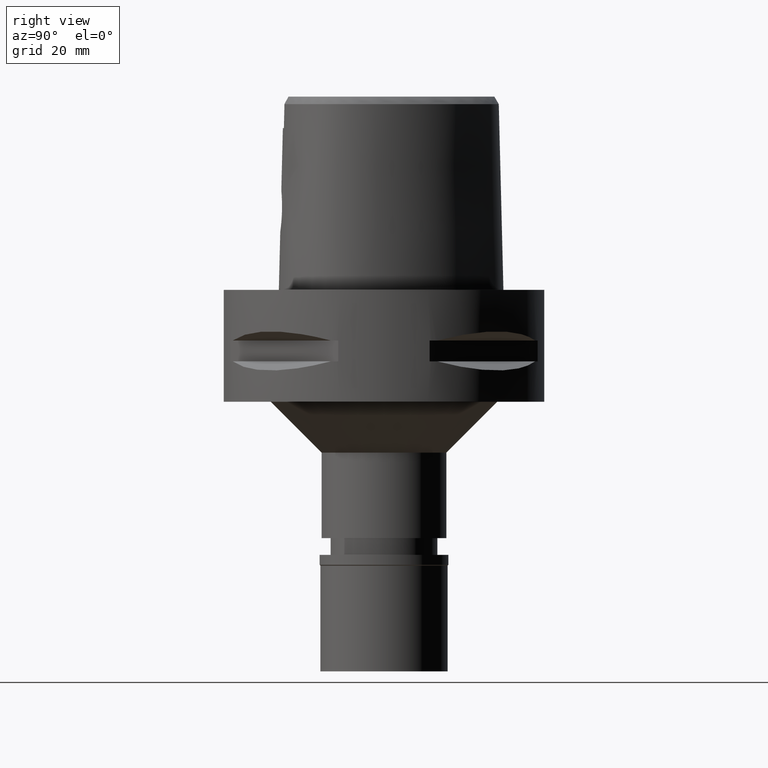
[diagram: clean part render]
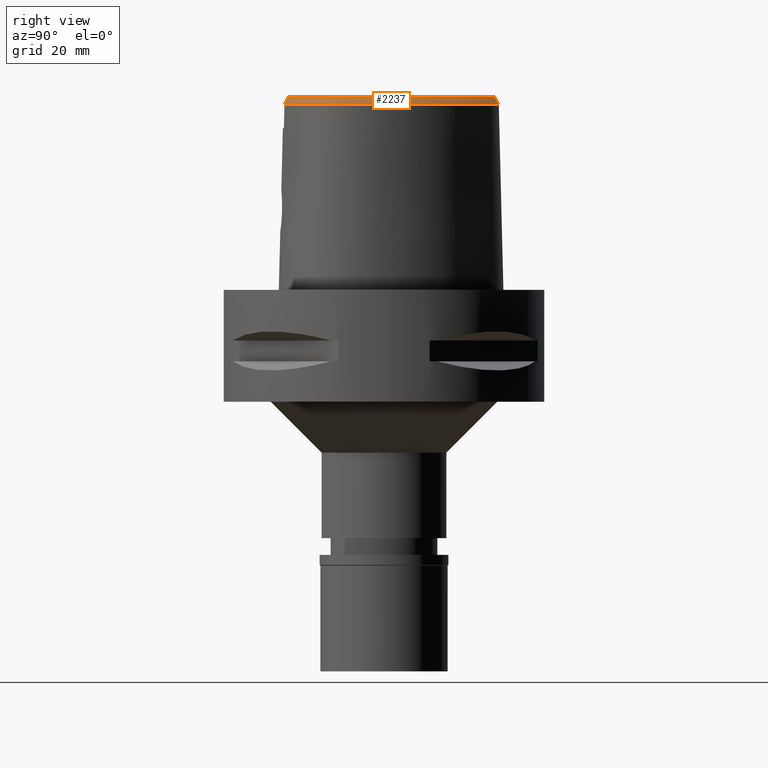
[diagram: same view with one face highlighted and labeled with its STEP entity id]
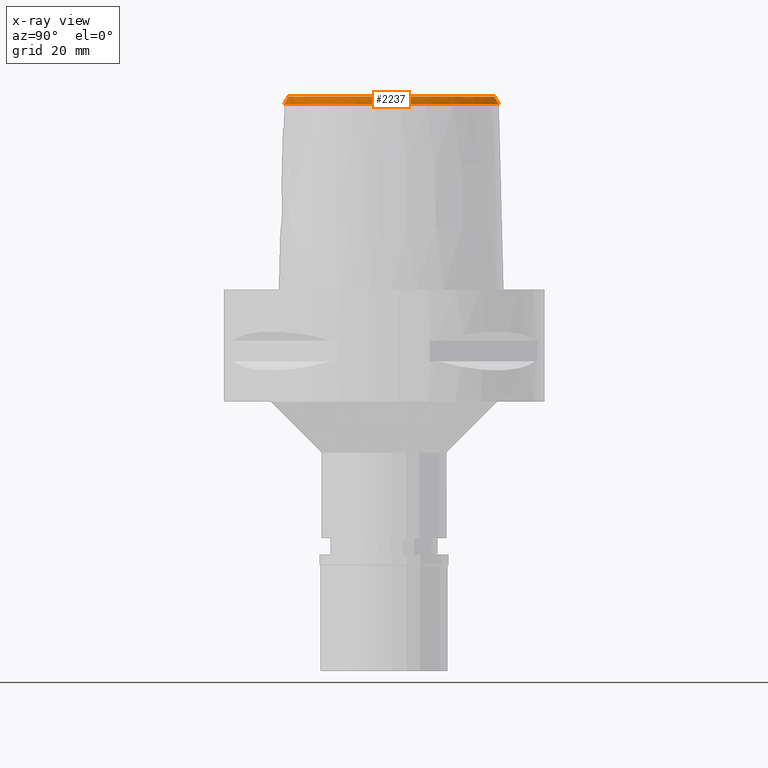
[diagram: x-ray of the same camera — body ghosted, the highlighted face saturated]
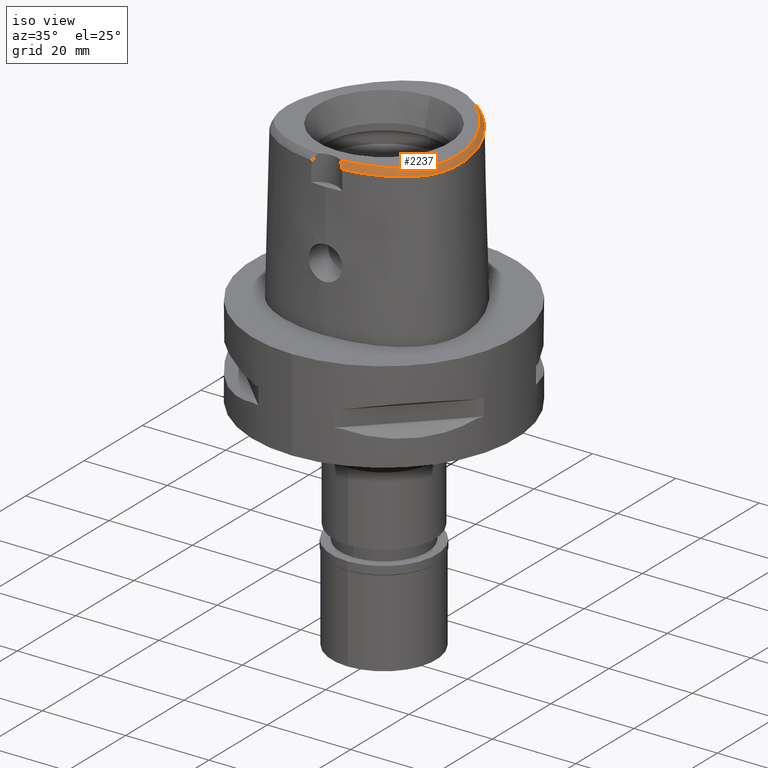
[diagram: same view with one face highlighted and labeled with its STEP entity id]
A machine part, right view. The second image highlights one B-rep face of the part: STEP entity #2237.
The next image is the same camera in x-ray: the body ghosted, the highlighted face saturated — about 0% of this face is hidden behind the body in this view.
A second angle (iso view) of the same face is appended — the face is thin or edge-on in the first view.
In plain terms, the highlighted face is a freeform B-spline surface patch.
Its self-contained STEP definition (entity closure, byte-faithful):
#1 = CARTESIAN_POINT ( 'NONE',  ( 19.85893420387000319, 0.2093043518200999875, 38.14233768172000083 ) ) ;
#16 = ORIENTED_EDGE ( 'NONE', *, *, #4386, .F. ) ;
#26 = CARTESIAN_POINT ( 'NONE',  ( 20.27923816685697744, -6.179850483268552352, 38.00000000000189715 ) ) ;
#27 = CARTESIAN_POINT ( 'NONE',  ( 7.609322350936000845, 19.02384074973999972, 38.14233798389000185 ) ) ;
#32 = CARTESIAN_POINT ( 'NONE',  ( 10.26521421730999961, -17.49286729517999817, 37.55472042238999819 ) ) ;
#34 = CARTESIAN_POINT ( 'NONE',  ( 20.09619608768439392, -10.23243839429969526, 36.52186680739944080 ) ) ;
#44 = CARTESIAN_POINT ( 'NONE',  ( -3.470663397165000433E-11, 21.68728795390000030, 38.00000000000000000 ) ) ;
#45 = CARTESIAN_POINT ( 'NONE',  ( 0.6897275444892000396, 22.28414658196000175, 36.96710129940999678 ) ) ;
#50 = CARTESIAN_POINT ( 'NONE',  ( 14.71624351938999808, -16.16025497477999906, 36.37948367857999443 ) ) ;
#52 = CARTESIAN_POINT ( 'NONE',  ( -1.460227875973999874E-11, 22.56201468012000078, 36.52186680743999858 ) ) ;
#71 = CARTESIAN_POINT ( 'NONE',  ( 0.6513209347955726258, 21.67370899611861290, 38.00000000000110134 ) ) ;
#77 = CARTESIAN_POINT ( 'NONE',  ( 16.30714729653000106, -13.69910498926999942, 38.14233800427000176 ) ) ;
#101 = CARTESIAN_POINT ( 'NONE',  ( 5.309429619471999651, 21.09205466863000211, 36.96710176742999465 ) ) ;
#105 = CARTESIAN_POINT ( 'NONE',  ( 16.87922389032000225, -13.16391012829000040, 38.14233799533000280 ) ) ;
#109 = CARTESIAN_POINT ( 'NONE',  ( 3.637738219117000238, -19.56971420299000286, 36.52185956443999970 ) ) ;
#121 = CARTESIAN_POINT ( 'NONE',  ( -0.3946767004537000134, 21.59752894422999958, 38.14233798843000045 ) ) ;
#126 = CARTESIAN_POINT ( 'NONE',  ( 11.68862078011000172, -17.69288312504999894, 36.37948292475000045 ) ) ;
#129 = CARTESIAN_POINT ( 'NONE',  ( 4.467522181837084716, -19.48130276147729845, 36.52186680739944080 ) ) ;
#149 = CARTESIAN_POINT ( 'NONE',  ( 18.39148012605999938, -12.51503884851999970, 36.96710183719999776 ) ) ;
#163 = B_SPLINE_CURVE_WITH_KNOTS ( 'NONE', 3,
 ( #52, #3427, #1163, #4579, #1190, #3373, #4170, #2299, #3773, #1579, #815, #1978, #3790, #34, #3842, #1949, #420, #3456, #1921, #499, #442, #129, #109 ),
 .UNSPECIFIED., .F., .F.,
 ( 4, 1, 1, 1, 1, 1, 1, 1, 1, 1, 1, 1, 1, 1, 1, 1, 1, 1, 1, 1, 4 ),
 ( 0.0000000000000000000, 0.04382683003322416365, 0.08765366006602745563, 0.1314804900989360870, 0.1753073201318447183, 0.2629609801974513994, 0.3506146402631634684, 0.4382683003288753709, 0.5259219603945873844, 0.5697487904274959325, 0.6135756204601940933, 0.6574024504931027524, 0.6793158655095044018, 0.7012292805260113004, 0.7231426955424129499, 0.7450561105588145994, 0.7888829405916181203, 0.8327097706245266684, 0.8765366006573300783, 0.9641902607230630196, 1.000000000000000000 ),
 .UNSPECIFIED. ) ;
#174 = CARTESIAN_POINT ( 'NONE',  ( 20.57911425145999829, -7.951797171111999241, 36.96710137088000181 ) ) ;
#185 = CARTESIAN_POINT ( 'NONE',  ( 2.845098933833787758, -18.76733062686184894, 37.99999999999629097 ) ) ;
#189 = CARTESIAN_POINT ( 'NONE',  ( 17.39024792750000259, -12.62536624366999938, 38.14233798245000173 ) ) ;
#213 = CARTESIAN_POINT ( 'NONE',  ( 19.20032186290999832, -11.35072579786000091, 36.96710157924000839 ) ) ;
#241 = CARTESIAN_POINT ( 'NONE',  ( 18.24961985892999650, -11.53786583397000065, 38.14233801289999803 ) ) ;
#264 = CARTESIAN_POINT ( 'NONE',  ( 15.17644057704999838, 11.21098579469999912, 38.14233790013999936 ) ) ;
#289 = CARTESIAN_POINT ( 'NONE',  ( 17.42492481456999798, 8.807603344372999743, 36.96710169664000745 ) ) ;
#312 = CARTESIAN_POINT ( 'NONE',  ( 17.73152053319000032, 8.971956420100999807, 36.37948356802999683 ) ) ;
#337 = CARTESIAN_POINT ( 'NONE',  ( 17.84169282468999995, 7.213307639382999348, 37.55472000113000064 ) ) ;
#360 = CARTESIAN_POINT ( 'NONE',  ( 16.09765529146748619, 9.909410920133280953, 37.99999999999220535 ) ) ;
#361 = CARTESIAN_POINT ( 'NONE',  ( 13.15597347491000058, 15.53115219750999998, 36.37948405084999592 ) ) ;
#385 = CARTESIAN_POINT ( 'NONE',  ( 2.195783942571999603, 22.44559013944000014, 36.37948317159999334 ) ) ;
#395 = CARTESIAN_POINT ( 'NONE',  ( 9.011984569250000021, -17.90067041789999891, 37.55472085951999617 ) ) ;
#411 = CARTESIAN_POINT ( 'NONE',  ( 13.40430406168575850, 13.76274261013069911, 37.99999999999801048 ) ) ;
#412 = CARTESIAN_POINT ( 'NONE',  ( 2.131433587926999884, 22.10363827325999964, 36.96710144396000430 ) ) ;
#417 = CARTESIAN_POINT ( 'NONE',  ( 2.340991395831000244, -19.76781239266000156, 36.37948412635999773 ) ) ;
#420 = CARTESIAN_POINT ( 'NONE',  ( 17.90324024157302318, -13.53935104435921843, 36.52186680739944080 ) ) ;
#432 = CARTESIAN_POINT ( 'NONE',  ( 17.60373714028315462, 7.099883643193427574, 37.99999999999587175 ) ) ;
#433 = CARTESIAN_POINT ( 'NONE',  ( 0.02240560512095000206, 21.60915582236000176, 38.14233795892999979 ) ) ;
#438 = CARTESIAN_POINT ( 'NONE',  ( 16.31194752198000231, -15.05193205538999912, 36.37948332244000227 ) ) ;
#442 = CARTESIAN_POINT ( 'NONE',  ( 7.300578979384798828, -19.07170738131011589, 36.52186680739944080 ) ) ;
#463 = CARTESIAN_POINT ( 'NONE',  ( 11.46587147799962736, 15.92717600803033839, 37.99999999999869260 ) ) ;
#464 = CARTESIAN_POINT ( 'NONE',  ( 4.225646229972999990, 20.78742700226000295, 38.14233798984000146 ) ) ;
#469 = CARTESIAN_POINT ( 'NONE',  ( 7.751737060809999136, -18.60235288499000106, 36.96710333727999398 ) ) ;
#488 = CARTESIAN_POINT ( 'NONE',  ( 2.682287482605000051, -18.78036330228999873, 38.00000000000000000 ) ) ;
#490 = CARTESIAN_POINT ( 'NONE',  ( 6.717487649266000282, 19.58144624087000096, 38.14233798710000656 ) ) ;
#496 = CARTESIAN_POINT ( 'NONE',  ( 15.35507117386000075, -15.32622036319999914, 36.96710206328999959 ) ) ;
#499 = CARTESIAN_POINT ( 'NONE',  ( 10.91891095221506625, -18.03046396093020576, 36.52186680739944080 ) ) ;
#521 = CARTESIAN_POINT ( 'NONE',  ( 17.84553033422000112, -12.08348674997999872, 38.14233793449000132 ) ) ;
#527 = ORIENTED_EDGE ( 'NONE', *, *, #1381, .F. ) ;
#542 = CARTESIAN_POINT ( 'NONE',  ( 20.12279142007000132, -9.440500325820000427, 36.96710174168999430 ) ) ;
#567 = CARTESIAN_POINT ( 'NONE',  ( 21.34139413928999929, -3.233048163182999701, 36.37948315121000320 ) ) ;
#588 = CARTESIAN_POINT ( 'NONE',  ( 20.42048045427999980, -0.9682417574884999434, 37.55471986082999791 ) ) ;
#594 = VERTEX_POINT ( 'NONE', #3595 ) ;
#611 = CARTESIAN_POINT ( 'NONE',  ( 20.56714244688999571, -2.149503753696000441, 37.55471959970999762 ) ) ;
#615 = CARTESIAN_POINT ( 'NONE',  ( 0.2185816947241231989, 21.68728795389931818, 38.00000000000194689 ) ) ;
#637 = CARTESIAN_POINT ( 'NONE',  ( 18.80633541575999956, 5.909117532410999907, 36.96710166308000112 ) ) ;
#661 = CARTESIAN_POINT ( 'NONE',  ( 10.66808633174999876, 17.06034021241000076, 37.55472081229000025 ) ) ;
#683 = CARTESIAN_POINT ( 'NONE',  ( 16.62231997629000091, 10.22346106366999940, 36.96710146478000070 ) ) ;
#700 = EDGE_CURVE ( 'NONE', #985, #2008, #1262, .T. ) ;
#710 = CARTESIAN_POINT ( 'NONE',  ( 11.40592185650000090, 15.86795677906000002, 38.14233765554000399 ) ) ;
#716 = CARTESIAN_POINT ( 'NONE',  ( 2.066891350848000020, -18.73950834635999740, 38.14233790941000279 ) ) ;
#733 = CARTESIAN_POINT ( 'NONE',  ( 12.44125753246744637, 14.89118158853506557, 37.99999999999932498 ) ) ;
#735 = CARTESIAN_POINT ( 'NONE',  ( 14.27595126296999872, 12.49794758712999965, 38.14233792479000584 ) ) ;
#781 = CARTESIAN_POINT ( 'NONE',  ( 3.771018666203000080, 22.04976559524999757, 36.37948363638000160 ) ) ;
#787 = CARTESIAN_POINT ( 'NONE',  ( 12.63833035463999899, -16.89122463412000030, 36.96710133768999640 ) ) ;
#804 = CARTESIAN_POINT ( 'NONE',  ( 14.21382211799330975, -15.34284287400625857, 37.99999999999311484 ) ) ;
#809 = CARTESIAN_POINT ( 'NONE',  ( 2.691145549728999775, -19.39438639738999726, 36.96710208495999694 ) ) ;
#815 = CARTESIAN_POINT ( 'NONE',  ( 21.32871516739782436, -4.105831245034658572, 36.52186680739944080 ) ) ;
#827 = CARTESIAN_POINT ( 'NONE',  ( 6.760281394351244089, 19.65404668909734909, 37.99999999999628386 ) ) ;
#828 = CARTESIAN_POINT ( 'NONE',  ( 6.015666020603000597, 20.36600767263999856, 37.55471989337999617 ) ) ;
#833 = CARTESIAN_POINT ( 'NONE',  ( 15.66886253767999904, -14.22977268098000181, 38.14233797543000293 ) ) ;
#863 = CARTESIAN_POINT ( 'NONE',  ( 16.53704994711999987, -13.96026754206999954, 37.55471966754000590 ) ) ;
#887 = CARTESIAN_POINT ( 'NONE',  ( 20.54095658180999706, -6.211708936785999668, 37.55471984576999489 ) ) ;
#904 = CARTESIAN_POINT ( 'NONE',  ( 20.64628762303999565, -3.264399808988000196, 37.55471971071000326 ) ) ;
#931 = CARTESIAN_POINT ( 'NONE',  ( 19.84668519550999832, -10.91224221522000093, 36.37948289530000068 ) ) ;
#952 = CARTESIAN_POINT ( 'NONE',  ( 20.66424939922999826, -4.311765405054999611, 37.55471976532000156 ) ) ;
#975 = CARTESIAN_POINT ( 'NONE',  ( 20.91728649596999645, -8.033674048386998834, 36.37948305695000073 ) ) ;
#985 = VERTEX_POINT ( 'NONE', #1210 ) ;
#1002 = CARTESIAN_POINT ( 'NONE',  ( 19.51451517882999909, 2.948298590129000196, 37.55472028521000283 ) ) ;
#1029 = CARTESIAN_POINT ( 'NONE',  ( 14.14914851356000014, 14.36736682783000063, 36.37948267790000045 ) ) ;
#1051 = CARTESIAN_POINT ( 'NONE',  ( 18.15571325922000057, 7.362988672043000449, 36.96710210463000124 ) ) ;
#1076 = CARTESIAN_POINT ( 'NONE',  ( 19.18224319391000066, 2.845271868736999998, 38.14233780682000230 ) ) ;
#1109 = CARTESIAN_POINT ( 'NONE',  ( 16.04558369129999917, 11.78865970951999920, 36.37948417959999858 ) ) ;
#1133 = CARTESIAN_POINT ( 'NONE',  ( 18.79595068775904210, 4.257753965102256011, 38.00000000000127898 ) ) ;
#1153 = CARTESIAN_POINT ( 'NONE',  ( 17.45306278053585913, -12.68156296993430132, 37.99999999999464961 ) ) ;
#1154 = CARTESIAN_POINT ( 'NONE',  ( 7.070821102806000624, 20.18088354298000198, 36.96710145537999637 ) ) ;
#1160 = CARTESIAN_POINT ( 'NONE',  ( 3.593714593622999942, -19.31542334806999861, 36.96710201271000074 ) ) ;
#1163 = CARTESIAN_POINT ( 'NONE',  ( 2.376843874103930165, 22.39422497744534368, 36.52186680739944080 ) ) ;
#1179 = CARTESIAN_POINT ( 'NONE',  ( 16.93855157778011389, -13.22377441789292085, 37.99999999999051425 ) ) ;
#1181 = CARTESIAN_POINT ( 'NONE',  ( -0.4340790722415000524, 22.64018091594999760, 36.37948317431000333 ) ) ;
#1185 = CARTESIAN_POINT ( 'NONE',  ( 15.15664715592000178, -15.04042570676000068, 37.55471998330999384 ) ) ;
#1190 = CARTESIAN_POINT ( 'NONE',  ( 7.108589361577216437, 20.52412316395074754, 36.52186680739944080 ) ) ;
#1203 = CARTESIAN_POINT ( 'NONE',  ( 17.91165267838885811, -12.13575389397923132, 38.00000000000096634 ) ) ;
#1205 = CARTESIAN_POINT ( 'NONE',  ( 4.597379404530999025, 21.76279075506000282, 36.37948315829999757 ) ) ;
#1210 = CARTESIAN_POINT ( 'NONE',  ( -1.460227875973999874E-11, 22.56201468012000078, 36.52186680743999858 ) ) ;
#1211 = CARTESIAN_POINT ( 'NONE',  ( 13.63018485689000059, -16.38685093826999761, 36.96710141100000158 ) ) ;
#1229 = CARTESIAN_POINT ( 'NONE',  ( 1.325020189552487571, 21.61081414408872092, 37.99999999999361222 ) ) ;
#1230 = CARTESIAN_POINT ( 'NONE',  ( 6.175580588881000033, 20.67499746414000228, 36.96710185469000010 ) ) ;
#1234 = CARTESIAN_POINT ( 'NONE',  ( 6.246400429841000523, -18.57557879812999957, 37.55471967521999943 ) ) ;
#1260 = CARTESIAN_POINT ( 'NONE',  ( 4.851592951190999869, -19.51564106131000287, 36.37948320753000075 ) ) ;
#1262 = LINE ( 'NONE', #3525, #2339 ) ;
#1281 = CARTESIAN_POINT ( 'NONE',  ( 18.66445502198000028, -12.73081489778000197, 36.37948378856000176 ) ) ;
#1301 = CARTESIAN_POINT ( 'NONE',  ( 20.99384088117000147, -3.248723986084999904, 36.96710143095999967 ) ) ;
#1318 = CARTESIAN_POINT ( 'NONE',  ( 11.32341394162733117, -16.80569392800481410, 37.99999999999213429 ) ) ;
#1321 = ORIENTED_EDGE ( 'NONE', *, *, #1373, .T. ) ;
#1325 = CARTESIAN_POINT ( 'NONE',  ( 20.97441085474000033, -5.315872012349000642, 36.96710208166000200 ) ) ;
#1344 = CARTESIAN_POINT ( 'NONE',  ( 7.606839420237291982, -18.00827588386488998, 37.99999999999889866 ) ) ;
#1348 = CARTESIAN_POINT ( 'NONE',  ( 17.61399681073000067, -13.90532886179999927, 36.37948309574999683 ) ) ;
#1370 = CARTESIAN_POINT ( 'NONE',  ( 20.24094200696000101, -7.869920293837000536, 37.55471968481000289 ) ) ;
#1373 = EDGE_CURVE ( 'NONE', #2008, #594, #2747, .T. ) ;
#1381 = EDGE_CURVE ( 'NONE', #3017, #594, #1693, .T. ) ;
#1395 = CARTESIAN_POINT ( 'NONE',  ( 16.92080287557000062, 10.40212488471000007, 36.37948320427000226 ) ) ;
#1420 = CARTESIAN_POINT ( 'NONE',  ( 9.914585779843999802, 18.17638517721999847, 36.96710242243000266 ) ) ;
#1444 = CARTESIAN_POINT ( 'NONE',  ( 12.63764482819000179, 15.06703060739000044, 37.55471995791000239 ) ) ;
#1466 = CARTESIAN_POINT ( 'NONE',  ( 8.736130284907000387, 18.65766773514999954, 37.55471957636999747 ) ) ;
#1495 = CARTESIAN_POINT ( 'NONE',  ( 19.64387775268282610, 1.522048414458162302, 37.99999999999265299 ) ) ;
#1496 = CARTESIAN_POINT ( 'NONE',  ( 20.19979408092000028, 0.2788760496568000735, 37.55472067657999702 ) ) ;
#1520 = CARTESIAN_POINT ( 'NONE',  ( 20.15127154947639099, -7.022178451341277494, 37.99999999999932498 ) ) ;
#1521 = CARTESIAN_POINT ( 'NONE',  ( 1.314532130361999895, 21.52718355359000313, 38.14233803859999483 ) ) ;
#1527 = CARTESIAN_POINT ( 'NONE',  ( 10.38094555086999904, -17.82094245264999799, 36.96710308179999771 ) ) ;
#1540 = CARTESIAN_POINT ( 'NONE',  ( 19.98468477322985137, -7.807876343103433925, 37.99999999999235456 ) ) ;
#1541 = CARTESIAN_POINT ( 'NONE',  ( -0.5994578891438999690, 21.58669903538000057, 38.14233803182999338 ) ) ;
#1548 = CARTESIAN_POINT ( 'NONE',  ( 14.35187581802999901, -15.56744868230999934, 37.55471985562000015 ) ) ;
#1569 = CARTESIAN_POINT ( 'NONE',  ( 18.31883910942949356, -11.58595831188410230, 37.99999999999892708 ) ) ;
#1575 = CARTESIAN_POINT ( 'NONE',  ( 11.29133602307000217, -16.72776772343000218, 38.14233801034999516 ) ) ;
#1579 = CARTESIAN_POINT ( 'NONE',  ( 21.07429999882822358, -0.4408303635841037127, 36.52186680739944080 ) ) ;
#1595 = CARTESIAN_POINT ( 'NONE',  ( -0.4078108243829000057, 21.94507960147000247, 37.55471971706000289 ) ) ;
#1600 = CARTESIAN_POINT ( 'NONE',  ( 17.12414819712000025, -13.41104970612999914, 37.55471969546999844 ) ) ;
#1623 = CARTESIAN_POINT ( 'NONE',  ( 15.88322419910999983, -14.50382580579000091, 37.55471975775999738 ) ) ;
#1652 = CARTESIAN_POINT ( 'NONE',  ( 19.10689970608000010, -12.13349077670999954, 36.37948289583000161 ) ) ;
#1675 = CARTESIAN_POINT ( 'NONE',  ( 20.70070881889999725, -8.822230684898999087, 36.37948315941999766 ) ) ;
#1693 = B_SPLINE_CURVE_WITH_KNOTS ( 'NONE', 3,
 ( #2814, #3470, #4237, #3192, #3832, #488 ),
 .UNSPECIFIED., .F., .F.,
 ( 4, 1, 1, 4 ),
 ( 0.0000000000000000000, 0.3333333333333000081, 0.6666666666667000474, 1.000000000000000000 ),
 .UNSPECIFIED. ) ;
#1699 = CARTESIAN_POINT ( 'NONE',  ( 18.60514461086999916, -10.99003682885999922, 38.14233797003000603 ) ) ;
#1728 = CARTESIAN_POINT ( 'NONE',  ( 17.90888888570999882, -13.08936357151999985, 36.96710148911000005 ) ) ;
#1736 = EDGE_LOOP ( 'NONE', ( #16, #3555, #1321, #527 ) ) ;
#1748 = CARTESIAN_POINT ( 'NONE',  ( 18.92148929336000052, -10.42876260459000015, 38.14233801294000159 ) ) ;
#1768 = CARTESIAN_POINT ( 'NONE',  ( 15.46615494847000072, 11.40354376630999944, 37.55471999328999999 ) ) ;
#1795 = CARTESIAN_POINT ( 'NONE',  ( 20.17905914868000039, 3.154352032912000059, 36.37948524200000122 ) ) ;
#1805 = B_SPLINE_SURFACE_WITH_KNOTS ( 'NONE', 3, 3, ( 
 ( #716, #2225, #4462, #1898 ),
 ( #4507, #3478, #4242, #417 ),
 ( #4600, #3368, #809, #1944 ),
 ( #2376, #3453, #1160, #2296 ),
 ( #3815, #3839, #3423, #1260 ),
 ( #2758, #1234, #2272, #3110 ),
 ( #2658, #1996, #469, #1975 ),
 ( #3747, #395, #4531, #2704 ),
 ( #2316, #32, #1527, #4218 ),
 ( #1575, #3020, #4140, #126 ),
 ( #3087, #3787, #787, #3770 ),
 ( #4574, #4186, #1211, #4552 ),
 ( #1919, #1548, #3394, #50 ),
 ( #3043, #1185, #496, #2684 ),
 ( #833, #1623, #4167, #438 ),
 ( #77, #863, #3066, #2342 ),
 ( #105, #1600, #2726, #1348 ),
 ( #189, #4638, #1728, #2794 ),
 ( #521, #2016, #149, #1281 ),
 ( #241, #2866, #3135, #1652 ),
 ( #1699, #3153, #213, #4690 ),
 ( #1748, #4663, #2417, #931 ),
 ( #2089, #3886, #4713, #2041 ),
 ( #4620, #3915, #542, #2820 ),
 ( #2399, #2844, #4283, #1675 ),
 ( #3594, #1370, #174, #975 ),
 ( #2441, #3222, #4263, #3172 ),
 ( #3199, #887, #2774, #3524 ),
 ( #3863, #4327, #1325, #2481 ),
 ( #2460, #952, #3500, #3960 ),
 ( #4305, #904, #1301, #567 ),
 ( #2067, #611, #3562, #3545 ),
 ( #3938, #588, #2119, #4037 ),
 ( #1, #1496, #3318, #4349 ),
 ( #4456, #4735, #4089, #2581 ),
 ( #1076, #1002, #2506, #1795 ),
 ( #3339, #4405, #1865, #3988 ),
 ( #3298, #3669, #637, #2144 ),
 ( #4789, #337, #1051, #3243 ),
 ( #2608, #4811, #289, #312 ),
 ( #3617, #2554, #683, #1395 ),
 ( #264, #1768, #2892, #1109 ),
 ( #735, #2939, #2240, #4383 ),
 ( #4429, #1822, #2193, #1029 ),
 ( #2531, #1444, #4066, #361 ),
 ( #710, #2221, #3272, #1846 ),
 ( #4013, #661, #2167, #3638 ),
 ( #4763, #3714, #1420, #2918 ),
 ( #3694, #1466, #2964, #2337 ),
 ( #27, #3388, #2650, #2371 ),
 ( #490, #2630, #1154, #3446 ),
 ( #4527, #828, #1230, #4501 ),
 ( #4548, #3834, #101, #4161 ),
 ( #464, #4479, #2312, #1205 ),
 ( #4134, #1938, #2995, #781 ),
 ( #3415, #2290, #3037, #4110 ),
 ( #3766, #1992, #412, #385 ),
 ( #1521, #3784, #2264, #3807 ),
 ( #1892, #1915, #45, #3472 ),
 ( #433, #3082, #1969, #2701 ),
 ( #121, #1595, #4182, #1181 ),
 ( #1541, #2678, #2721, #4569 ) ),
 .UNSPECIFIED., .F., .F., .F.,
 ( 4, 1, 1, 1, 1, 1, 1, 1, 1, 1, 1, 1, 1, 1, 1, 1, 1, 1, 1, 1, 1, 1, 1, 1, 1, 1, 1, 1, 1, 1, 1, 1, 1, 1, 1, 1, 1, 1, 1, 1, 1, 1, 1, 1, 1, 1, 1, 1, 1, 1, 1, 1, 1, 1, 1, 1, 1, 1, 1, 4 ),
 ( 4, 4 ),
 ( -0.006872922983041999424, 0.0000000000000000000, 0.005521655259608000341, 0.02328019712995000115, 0.04103873900030000077, 0.05879728087063999797, 0.07655582274102000484, 0.09431436461132000626, 0.1120729064816999992, 0.1298314483520000007, 0.1475899902222999882, 0.1653485320926999791, 0.1831070739629999944, 0.2008656158334000130, 0.2186241577037000006, 0.2363826995740999914, 0.2541412414444000345, 0.2718997833148000254, 0.2896583251850999852, 0.3074168670554999760, 0.3251754089257999913, 0.3429339507961000066, 0.3606924926664999975, 0.3784510345368000128, 0.3962095764072000037, 0.4139681182775000190, 0.4317266601479000099, 0.4494852020181999697, 0.4672437438886000161, 0.4850022857588999758, 0.5027608276292000467, 0.5205193694995999820, 0.5382779113698999973, 0.5560364532403000437, 0.5737949951105999480, 0.5915535369809999944, 0.6093120788513000097, 0.6270706207217000561, 0.6448291625919999603, 0.6625877044622999756, 0.6803462463327000220, 0.6981047882029999263, 0.7158633300733999727, 0.7336218719436999880, 0.7513804138142000655, 0.7691389556844999698, 0.7868974975549000161, 0.8046560394252000314, 0.8224145812955999668, 0.8401731231658999821, 0.8579316650361999974, 0.8756902069066000438, 0.8934487487768999481, 0.9112072906472999945, 0.9289658325176000098, 0.9467243743879999451, 0.9644829162583000715, 0.9822414581287000068, 1.000000000000000000, 1.016088127153999876 ),
 ( -0.07336082861880999229, 1.073385347927000133 ),
 .UNSPECIFIED. ) ;
#1822 = CARTESIAN_POINT ( 'NONE',  ( 13.60896997013000131, 13.92887926386000075, 37.55471958065999871 ) ) ;
#1846 = CARTESIAN_POINT ( 'NONE',  ( 12.14839742484000062, 16.60138644196000257, 36.37948696435000073 ) ) ;
#1864 = CARTESIAN_POINT ( 'NONE',  ( 18.24247239569356793, 5.672548708072172374, 37.99999999999802469 ) ) ;
#1865 = CARTESIAN_POINT ( 'NONE',  ( 19.37051610809000124, 4.467008032313999344, 36.96710106357000569 ) ) ;
#1891 = CARTESIAN_POINT ( 'NONE',  ( 3.482188079159980187, 21.13472718027247055, 37.99999999999683808 ) ) ;
#1892 = CARTESIAN_POINT ( 'NONE',  ( 0.6460283341443999738, 21.58958799732999978, 38.14233800859999945 ) ) ;
#1898 = CARTESIAN_POINT ( 'NONE',  ( 2.131058695400000147, -19.78075157727000288, 36.37948407404000051 ) ) ;
#1914 = CARTESIAN_POINT ( 'NONE',  ( 14.34383722811262629, 12.54786717290064146, 37.99999999999477041 ) ) ;
#1915 = CARTESIAN_POINT ( 'NONE',  ( 0.6678779393167999512, 21.93686728964000210, 37.55471965400000300 ) ) ;
#1919 = CARTESIAN_POINT ( 'NONE',  ( 14.16969196735999859, -15.27104553607999904, 38.14233794414000300 ) ) ;
#1921 = CARTESIAN_POINT ( 'NONE',  ( 14.22011350746682723, -16.41829354688145415, 36.52186680739944080 ) ) ;
#1937 = CARTESIAN_POINT ( 'NONE',  ( 19.54993126781692681, -9.226212439885749461, 38.00000000000049738 ) ) ;
#1938 = CARTESIAN_POINT ( 'NONE',  ( 3.561551997806999825, 21.38615842606999706, 37.55471984402999652 ) ) ;
#1944 = CARTESIAN_POINT ( 'NONE',  ( 2.718477931178000073, -19.74106606574000011, 36.37948417727000106 ) ) ;
#1949 = CARTESIAN_POINT ( 'NONE',  ( 18.90964962508071423, -12.28759713487729144, 36.52186680739944080 ) ) ;
#1968 = CARTESIAN_POINT ( 'NONE',  ( 16.88599964843264800, 8.518708218770271401, 38.00000000000217426 ) ) ;
#1969 = CARTESIAN_POINT ( 'NONE',  ( 0.02371643077320999965, 22.30505178435999980, 36.96710165985000174 ) ) ;
#1975 = CARTESIAN_POINT ( 'NONE',  ( 7.834169648912999939, -18.94032460448999799, 36.37948614202999664 ) ) ;
#1978 = CARTESIAN_POINT ( 'NONE',  ( 21.14970177531156281, -6.717195943319091533, 36.52186680739944080 ) ) ;
#1992 = CARTESIAN_POINT ( 'NONE',  ( 2.067083233282000165, 21.76168640707000179, 37.55471971632000106 ) ) ;
#1996 = CARTESIAN_POINT ( 'NONE',  ( 7.669304472707000109, -18.26438116549000057, 37.55472053252000109 ) ) ;
#2008 = VERTEX_POINT ( 'NONE', #2390 ) ;
#2016 = CARTESIAN_POINT ( 'NONE',  ( 18.11850523014000203, -12.29926279925000010, 37.55471988584000087 ) ) ;
#2041 = CARTESIAN_POINT ( 'NONE',  ( 20.16319685874999834, -10.25853467161000054, 36.37948337386000475 ) ) ;
#2067 = CARTESIAN_POINT ( 'NONE',  ( 20.22091815020999661, -2.183608959323000143, 38.14233802594999645 ) ) ;
#2084 = CARTESIAN_POINT ( 'NONE',  ( 4.715576077241943942, -18.56597918135391723, 37.99999999999027978 ) ) ;
#2089 = CARTESIAN_POINT ( 'NONE',  ( 19.20979505294999967, -9.833433218588000457, 38.14233797091000611 ) ) ;
#2119 = CARTESIAN_POINT ( 'NONE',  ( 20.76445088487000135, -0.9161420452746000809, 36.96710177916999385 ) ) ;
#2144 = CARTESIAN_POINT ( 'NONE',  ( 19.12711833462000044, 6.043702059652000358, 36.37948351538000225 ) ) ;
#2167 = CARTESIAN_POINT ( 'NONE',  ( 10.90310567890999849, 17.31683647231999856, 36.96710398623999794 ) ) ;
#2193 = CARTESIAN_POINT ( 'NONE',  ( 13.87905924184000028, 14.14812304584000024, 36.96710112927999603 ) ) ;
#2221 = CARTESIAN_POINT ( 'NONE',  ( 11.65341371261999903, 16.11243333335999850, 37.55472075848000202 ) ) ;
#2225 = CARTESIAN_POINT ( 'NONE',  ( 2.088280465697999855, -19.08658942333000041, 37.55471996428999404 ) ) ;
#2237 = ADVANCED_FACE ( 'NONE', ( #4073 ), #1805, .F. ) ;
#2239 = CARTESIAN_POINT ( 'NONE',  ( 15.24661770199434585, 11.25762885478191855, 37.99999999999879918 ) ) ;
#2240 = CARTESIAN_POINT ( 'NONE',  ( 14.83646267562999910, 12.91011669278999996, 36.96710190753000091 ) ) ;
#2263 = CARTESIAN_POINT ( 'NONE',  ( 20.38292172608014141, -3.276278498261401495, 37.99999999999172928 ) ) ;
#2264 = CARTESIAN_POINT ( 'NONE',  ( 1.401128481470999887, 22.21769300312000084, 36.96710108164000275 ) ) ;
#2272 = CARTESIAN_POINT ( 'NONE',  ( 6.312257291172000073, -18.91716391353000049, 36.96710134863000263 ) ) ;
#2290 = CARTESIAN_POINT ( 'NONE',  ( 2.801230835996000312, 21.60098375051000019, 37.55471987960000035 ) ) ;
#2296 = CARTESIAN_POINT ( 'NONE',  ( 3.630353619946000254, -19.66128889741999686, 36.37948406391999612 ) ) ;
#2299 = CARTESIAN_POINT ( 'NONE',  ( 17.27359236348637239, 9.972912859140263819, 36.52186680739944080 ) ) ;
#2312 = CARTESIAN_POINT ( 'NONE',  ( 4.473468346345000235, 21.43766950411999872, 36.96710143548000360 ) ) ;
#2316 = CARTESIAN_POINT ( 'NONE',  ( 10.14948288375000018, -17.16479213770999834, 38.14233776297000134 ) ) ;
#2336 = CARTESIAN_POINT ( 'NONE',  ( 13.33890749495462025, -15.84912955619646802, 37.99999999999224798 ) ) ;
#2337 = CARTESIAN_POINT ( 'NONE',  ( 9.151248053246000325, 19.21606644705999756, 36.37948266229000183 ) ) ;
#2339 = VECTOR ( 'NONE', #4284, 1000.000000000000227 ) ;
#2342 = CARTESIAN_POINT ( 'NONE',  ( 16.99685524829000016, -14.48259264768999977, 36.37948299409000441 ) ) ;
#2371 = CARTESIAN_POINT ( 'NONE',  ( 8.186963796355000156, 19.89313144743000095, 36.37948322607999785 ) ) ;
#2376 = CARTESIAN_POINT ( 'NONE',  ( 3.520436540976000117, -18.62369224937999945, 38.14233791030000020 ) ) ;
#2390 = CARTESIAN_POINT ( 'NONE',  ( -3.470663397165000433E-11, 21.68728795390000030, 38.00000000000000000 ) ) ;
#2399 = CARTESIAN_POINT ( 'NONE',  ( 19.70264561353999966, -8.516468074930001464, 38.14233798974000678 ) ) ;
#2417 = CARTESIAN_POINT ( 'NONE',  ( 19.53828656145999787, -10.75108234500999949, 36.96710126785000483 ) ) ;
#2441 = CARTESIAN_POINT ( 'NONE',  ( 20.06833532391999952, -7.007187987648000771, 38.14233800348999637 ) ) ;
#2460 = CARTESIAN_POINT ( 'NONE',  ( 20.31635023950000019, -4.308558044114000118, 38.14233797301000095 ) ) ;
#2481 = CARTESIAN_POINT ( 'NONE',  ( 21.32160581031000035, -5.338336017804999223, 36.37948417209999974 ) ) ;
#2506 = CARTESIAN_POINT ( 'NONE',  ( 19.84678716375000107, 3.051325311520999950, 36.96710276360999359 ) ) ;
#2531 = CARTESIAN_POINT ( 'NONE',  ( 12.37848050482999973, 14.83496981232999978, 38.14233791145000652 ) ) ;
#2554 = CARTESIAN_POINT ( 'NONE',  ( 16.32383707701999853, 10.04479724261999962, 37.55471972528999913 ) ) ;
#2581 = CARTESIAN_POINT ( 'NONE',  ( 20.57309315174000020, 1.760729059151000087, 36.37948741103000572 ) ) ;
#2608 = CARTESIAN_POINT ( 'NONE',  ( 16.81173337731999951, 8.478897192917997927, 38.14233795386000025 ) ) ;
#2628 = CARTESIAN_POINT ( 'NONE',  ( 20.15982952132631922, -1.007721426051205738, 37.99999999999704414 ) ) ;
#2630 = CARTESIAN_POINT ( 'NONE',  ( 6.894154376036000009, 19.88116489192000103, 37.55471972124000501 ) ) ;
#2649 = CARTESIAN_POINT ( 'NONE',  ( 20.40062138794459656, -4.309334958867643728, 37.99999999999654676 ) ) ;
#2650 = CARTESIAN_POINT ( 'NONE',  ( 7.994416647882000682, 19.60336788152999787, 36.96710147868000007 ) ) ;
#2658 = CARTESIAN_POINT ( 'NONE',  ( 7.586871884604000194, -17.92640944599999742, 38.14233772777000553 ) ) ;
#2677 = CARTESIAN_POINT ( 'NONE',  ( 16.36283630828475921, -13.76236604535396957, 37.99999999999972289 ) ) ;
#2678 = CARTESIAN_POINT ( 'NONE',  ( -0.6190451126396999681, 21.93386622371999906, 37.55471958129000143 ) ) ;
#2684 = CARTESIAN_POINT ( 'NONE',  ( 15.55349519179000062, -15.61201501964000116, 36.37948414326999824 ) ) ;
#2695 = CARTESIAN_POINT ( 'NONE',  ( 3.637738219117000238, -19.56971420299000286, 36.52185956443999970 ) ) ;
#2700 = CARTESIAN_POINT ( 'NONE',  ( 5.059249257020544732, 20.53399274679396669, 37.99999999999690914 ) ) ;
#2701 = CARTESIAN_POINT ( 'NONE',  ( 0.02437184359934000191, 22.65299976535999704, 36.37948351029999117 ) ) ;
#2704 = CARTESIAN_POINT ( 'NONE',  ( 9.210105108130997920, -18.56763468144999862, 36.37948733208999386 ) ) ;
#2720 = CARTESIAN_POINT ( 'NONE',  ( 9.524842839488421475, 17.70516372194791899, 38.00000000000061817 ) ) ;
#2721 = CARTESIAN_POINT ( 'NONE',  ( -0.6386323361354000472, 22.28103341207000199, 36.96710113073999793 ) ) ;
#2726 = CARTESIAN_POINT ( 'NONE',  ( 17.36907250392999913, -13.65818928396999965, 36.96710139561000119 ) ) ;
#2747 = B_SPLINE_CURVE_WITH_KNOTS ( 'NONE', 3,
 ( #44, #615, #71, #1229, #4478, #3738, #1891, #4568, #2700, #3036, #827, #4547, #3783, #2720, #4133, #463, #733, #411, #1914, #2239, #360, #1968, #432, #1864, #1133, #3338, #1495, #3061, #2628, #4109, #2263, #2649, #3361, #26, #1520, #1540, #3013, #1937, #3414, #3387, #4526, #1569, #1203, #1153, #1179, #2677, #4181, #4159, #804, #2336, #3806, #1318, #3148, #3518, #1344, #4208, #2084, #4633, #185, #4257 ),
 .UNSPECIFIED., .F., .F.,
 ( 4, 1, 1, 1, 1, 1, 1, 1, 1, 1, 1, 1, 1, 1, 1, 1, 1, 1, 1, 1, 1, 1, 1, 1, 1, 1, 1, 1, 1, 1, 1, 1, 1, 1, 1, 1, 1, 1, 1, 1, 1, 1, 1, 1, 1, 1, 1, 1, 1, 1, 1, 1, 1, 1, 1, 1, 1, 4 ),
 ( 0.0000000000000000000, 0.01775854187129999318, 0.03551708374169992855, 0.05327562561200005486, 0.07103416748239999023, 0.08879270935270000553, 0.1065512512231000519, 0.1243097930933999562, 0.1420683349638000026, 0.1598268768341000179, 0.1775854187044000332, 0.1953439605747999686, 0.2131025024450999839, 0.2308610443155000302, 0.2486195861857999345, 0.2663781280563000120, 0.2841366699266000273, 0.3018952117970000737, 0.3196537536672999780, 0.3374122955377000244, 0.3551708374080000397, 0.3729293792782999439, 0.3906879211486999903, 0.4084464630190000056, 0.4262050048894000520, 0.4439635467596999563, 0.4617220886301000027, 0.4794806305004000180, 0.4972391723707999533, 0.5149977142410999686, 0.5327562561113999839, 0.5505147979818000303, 0.5682733398521000456, 0.5860318817224999810, 0.6037904235927999963, 0.6215489654632000427, 0.6393075073334999470, 0.6570660492038999934, 0.6748245910742000087, 0.6925831329445000240, 0.7103416748149000703, 0.7281002166851999746, 0.7458587585556000210, 0.7636173004259000363, 0.7813758422962999717, 0.7991343841665999870, 0.8168929260370000334, 0.8346514679073000487, 0.8524100097776999840, 0.8701685516479999993, 0.8879270935183000146, 0.9056856353886799660, 0.9234441772589799813, 0.9412027191293600437, 0.9589612609997000270, 0.9767198028700500023, 0.9944783447403919840, 1.000000000000000000 ),
 .UNSPECIFIED. ) ;
#2758 = CARTESIAN_POINT ( 'NONE',  ( 6.180543568510999286, -18.23399368272000132, 38.14233800180999623 ) ) ;
#2774 = CARTESIAN_POINT ( 'NONE',  ( 20.88633572496999946, -6.253751241605000288, 36.96710174424999451 ) ) ;
#2794 = CARTESIAN_POINT ( 'NONE',  ( 18.16820936481999738, -13.32136223543999876, 36.37948324244000275 ) ) ;
#2814 = CARTESIAN_POINT ( 'NONE',  ( 3.637738219117000238, -19.56971420299000286, 36.52185956443999970 ) ) ;
#2820 = CARTESIAN_POINT ( 'NONE',  ( 20.44869282732999949, -9.562409177937999161, 36.37948363871999646 ) ) ;
#2844 = CARTESIAN_POINT ( 'NONE',  ( 20.03533334866000004, -8.618388944918999428, 37.55471971297000522 ) ) ;
#2866 = CARTESIAN_POINT ( 'NONE',  ( 18.53537980798000007, -11.73640748154999969, 37.55471964054000011 ) ) ;
#2892 = CARTESIAN_POINT ( 'NONE',  ( 15.75586931988000039, 11.59610173791999976, 36.96710208644000062 ) ) ;
#2918 = CARTESIAN_POINT ( 'NONE',  ( 10.13631140036999945, 18.44446410503000067, 36.37948470671999956 ) ) ;
#2939 = CARTESIAN_POINT ( 'NONE',  ( 14.55620696929999980, 12.70403213996000069, 37.55471991615999627 ) ) ;
#2964 = CARTESIAN_POINT ( 'NONE',  ( 8.943689169076000312, 18.93686709109999811, 36.96710111932999610 ) ) ;
#2995 = CARTESIAN_POINT ( 'NONE',  ( 3.666285332004999731, 21.71796201066000265, 36.96710174020000039 ) ) ;
#3013 = CARTESIAN_POINT ( 'NONE',  ( 19.78323211893355804, -8.541156231035689217, 37.99999999999339195 ) ) ;
#3017 = VERTEX_POINT ( 'NONE', #2695 ) ;
#3020 = CARTESIAN_POINT ( 'NONE',  ( 11.42376427541999817, -17.04947285731000051, 37.55471964848999988 ) ) ;
#3036 = CARTESIAN_POINT ( 'NONE',  ( 5.894487344450372923, 20.13186406532615536, 37.99999999999337064 ) ) ;
#3037 = CARTESIAN_POINT ( 'NONE',  ( 2.886082482079999956, 21.93842637676999985, 36.96710182273000100 ) ) ;
#3043 = CARTESIAN_POINT ( 'NONE',  ( 14.95822313799000014, -14.75463105031999866, 38.14233790331999785 ) ) ;
#3061 = CARTESIAN_POINT ( 'NONE',  ( 19.94150023628003865, 0.2261566111945961799, 37.99999999999898392 ) ) ;
#3066 = CARTESIAN_POINT ( 'NONE',  ( 16.76695259770999868, -14.22143009488000054, 36.96710133082000027 ) ) ;
#3082 = CARTESIAN_POINT ( 'NONE',  ( 0.02306101794707999739, 21.95710380335999901, 37.55471980939000076 ) ) ;
#3087 = CARTESIAN_POINT ( 'NONE',  ( 12.34010479586000031, -16.26257141882999946, 38.14233800331999191 ) ) ;
#3110 = CARTESIAN_POINT ( 'NONE',  ( 6.378114152502000422, -19.25874902892999785, 36.37948302203000139 ) ) ;
#3135 = CARTESIAN_POINT ( 'NONE',  ( 18.82113975703000008, -11.93494912913000050, 36.96710126818000219 ) ) ;
#3148 = CARTESIAN_POINT ( 'NONE',  ( 10.17751632998682254, -17.24426134458476412, 37.99999999999542410 ) ) ;
#3153 = CARTESIAN_POINT ( 'NONE',  ( 18.90273323688999696, -11.17038131336000006, 37.55471977464000588 ) ) ;
#3172 = CARTESIAN_POINT ( 'NONE',  ( 21.09549979412999932, -7.192844756986000121, 36.37948300294999626 ) ) ;
#3192 = CARTESIAN_POINT ( 'NONE',  ( 3.013115851514999832, -19.00295558651000150, 37.57874800855000075 ) ) ;
#3199 = CARTESIAN_POINT ( 'NONE',  ( 20.19557743865999910, -6.169666631968000026, 38.14233794729999971 ) ) ;
#3222 = CARTESIAN_POINT ( 'NONE',  ( 20.41072348065999975, -7.069073577426999933, 37.55471966998000255 ) ) ;
#3243 = CARTESIAN_POINT ( 'NONE',  ( 18.46973369375000118, 7.512669704704000750, 36.37948420813999917 ) ) ;
#3272 = CARTESIAN_POINT ( 'NONE',  ( 11.90090556872999805, 16.35690988765999876, 36.96710386141000271 ) ) ;
#3298 = CARTESIAN_POINT ( 'NONE',  ( 18.16476957803000047, 5.639948477930000870, 38.14233795847999886 ) ) ;
#3318 = CARTESIAN_POINT ( 'NONE',  ( 20.54065395797000093, 0.3484477474934999930, 36.96710367144999765 ) ) ;
#3338 = CARTESIAN_POINT ( 'NONE',  ( 19.26272899268832717, 2.870227893749890402, 37.99999999999516120 ) ) ;
#3339 = CARTESIAN_POINT ( 'NONE',  ( 18.71677303200999987, 4.228917829282999641, 38.14233804109999681 ) ) ;
#3361 = CARTESIAN_POINT ( 'NONE',  ( 20.36412151361219358, -5.276385427454021837, 37.99999999999994316 ) ) ;
#3368 = CARTESIAN_POINT ( 'NONE',  ( 2.663813168279999921, -19.04770672905000239, 37.55471999264999994 ) ) ;
#3373 = CARTESIAN_POINT ( 'NONE',  ( 10.15538781006472568, 18.47129526702978097, 36.52186680739944080 ) ) ;
#3387 = CARTESIAN_POINT ( 'NONE',  ( 18.99619228226721646, -10.46780014453783991, 37.99999999999513278 ) ) ;
#3388 = CARTESIAN_POINT ( 'NONE',  ( 7.801869499408999431, 19.31360431563999924, 37.55471973128999963 ) ) ;
#3394 = CARTESIAN_POINT ( 'NONE',  ( 14.53405966870999855, -15.86385182853999964, 36.96710176709999729 ) ) ;
#3414 = CARTESIAN_POINT ( 'NONE',  ( 19.28677546796990327, -9.867757137506623977, 37.99999999999685230 ) ) ;
#3415 = CARTESIAN_POINT ( 'NONE',  ( 2.716379189911999781, 21.26354112425000054, 38.14233793648000415 ) ) ;
#3423 = CARTESIAN_POINT ( 'NONE',  ( 4.802271648826000217, -19.17128260514000004, 36.96710146686000087 ) ) ;
#3427 = CARTESIAN_POINT ( 'NONE',  ( 0.7901461619532027525, 22.56201467849595943, 36.52186680739944080 ) ) ;
#3446 = CARTESIAN_POINT ( 'NONE',  ( 7.247487829575999463, 20.48060219403999938, 36.37948318950999749 ) ) ;
#3453 = CARTESIAN_POINT ( 'NONE',  ( 3.557075567298999985, -18.96955779873000125, 37.55471996150999558 ) ) ;
#3456 = CARTESIAN_POINT ( 'NONE',  ( 16.39211273426930759, -14.95758104715575953, 36.52186680739944080 ) ) ;
#3470 = CARTESIAN_POINT ( 'NONE',  ( 3.538150066328000332, -19.46410328569999848, 36.71715046590000497 ) ) ;
#3472 = CARTESIAN_POINT ( 'NONE',  ( 0.7115771496616999370, 22.63142587427000052, 36.37948294482000478 ) ) ;
#3478 = CARTESIAN_POINT ( 'NONE',  ( 2.293973659041000257, -19.07391149541000175, 37.55471997866000322 ) ) ;
#3500 = CARTESIAN_POINT ( 'NONE',  ( 21.01214855895999989, -4.314972765995999104, 36.96710155761999772 ) ) ;
#3518 = CARTESIAN_POINT ( 'NONE',  ( 8.936919536467510028, -17.64796721715449834, 37.99999999999782574 ) ) ;
#3524 = CARTESIAN_POINT ( 'NONE',  ( 21.23171486812000097, -6.295793546422999931, 36.37948364271999679 ) ) ;
#3525 = CARTESIAN_POINT ( 'NONE',  ( -1.460227875973999874E-11, 22.56201468012000078, 36.52186680743999858 ) ) ;
#3545 = CARTESIAN_POINT ( 'NONE',  ( 21.25959104025000102, -2.081293342441000060, 36.37948274725000175 ) ) ;
#3555 = ORIENTED_EDGE ( 'NONE', *, *, #700, .T. ) ;
#3562 = CARTESIAN_POINT ( 'NONE',  ( 20.91336674356999836, -2.115398548067999762, 36.96710117347999613 ) ) ;
#3594 = CARTESIAN_POINT ( 'NONE',  ( 19.90276976246000373, -7.788043416560999965, 38.14233799874000397 ) ) ;
#3595 = CARTESIAN_POINT ( 'NONE',  ( 2.682287482605000051, -18.78036330228999873, 38.00000000000000000 ) ) ;
#3617 = CARTESIAN_POINT ( 'NONE',  ( 16.02535417773999882, 9.866133421569998063, 38.14233798580000467 ) ) ;
#3638 = CARTESIAN_POINT ( 'NONE',  ( 11.13812502606999999, 17.57333273221999548, 36.37948716019000273 ) ) ;
#3669 = CARTESIAN_POINT ( 'NONE',  ( 18.48555249689000135, 5.774533005171000433, 37.55471981077999999 ) ) ;
#3694 = CARTESIAN_POINT ( 'NONE',  ( 8.528571400737002151, 18.37846837919000009, 38.14233803340999174 ) ) ;
#3714 = CARTESIAN_POINT ( 'NONE',  ( 9.692860159319998559, 17.90830624940000249, 37.55472013813999865 ) ) ;
#3738 = CARTESIAN_POINT ( 'NONE',  ( 2.736932690726611384, 21.34527940056880624, 37.99999999999742784 ) ) ;
#3747 = CARTESIAN_POINT ( 'NONE',  ( 8.912924299809001027, -17.56718828612000038, 38.14233762324000310 ) ) ;
#3766 = CARTESIAN_POINT ( 'NONE',  ( 2.002732878635999914, 21.41973454088999773, 38.14233798867000758 ) ) ;
#3770 = CARTESIAN_POINT ( 'NONE',  ( 12.78744313402999921, -17.20555124175999850, 36.37948300487999376 ) ) ;
#3773 = CARTESIAN_POINT ( 'NONE',  ( 19.88562079789245018, 4.345879946637082547, 36.52186680739944080 ) ) ;
#3783 = CARTESIAN_POINT ( 'NONE',  ( 8.578848111817457323, 18.44609846599428593, 37.99999999999700862 ) ) ;
#3784 = CARTESIAN_POINT ( 'NONE',  ( 1.357830305917000047, 21.87243827836000065, 37.55471956011999879 ) ) ;
#3787 = CARTESIAN_POINT ( 'NONE',  ( 12.48921757525000054, -16.57689802647000121, 37.55471967050000615 ) ) ;
#3790 = CARTESIAN_POINT ( 'NONE',  ( 20.67704204634200593, -8.734985285293076274, 36.52186680739944080 ) ) ;
#3806 = CARTESIAN_POINT ( 'NONE',  ( 12.37622418510116518, -16.33871033285652175, 37.99999999999683808 ) ) ;
#3807 = CARTESIAN_POINT ( 'NONE',  ( 1.444426657024999949, 22.56294772788999836, 36.37948260315000226 ) ) ;
#3815 = CARTESIAN_POINT ( 'NONE',  ( 4.703629044094999934, -18.48256569280000150, 38.14233798551000376 ) ) ;
#3832 = CARTESIAN_POINT ( 'NONE',  ( 2.793143121915000027, -18.85083067068999796, 37.86635513754999494 ) ) ;
#3834 = CARTESIAN_POINT ( 'NONE',  ( 5.167101458103000589, 20.77457200737000065, 37.55471985575999838 ) ) ;
#3839 = CARTESIAN_POINT ( 'NONE',  ( 4.752950346460000475, -18.82692414896999722, 37.55471972619000098 ) ) ;
#3842 = CARTESIAN_POINT ( 'NONE',  ( 19.55745538001160000, -11.29150212657875407, 36.52186680739944080 ) ) ;
#3863 = CARTESIAN_POINT ( 'NONE',  ( 20.28002094360000029, -5.270944001438999216, 38.14233790080000119 ) ) ;
#3886 = CARTESIAN_POINT ( 'NONE',  ( 19.52759565487999893, -9.975133702926999746, 37.55471977189000654 ) ) ;
#3915 = CARTESIAN_POINT ( 'NONE',  ( 19.79689001280999605, -9.318591473703000005, 37.55471984466999658 ) ) ;
#3938 = CARTESIAN_POINT ( 'NONE',  ( 20.07651002369000182, -1.020341469702000126, 38.14233794248000464 ) ) ;
#3960 = CARTESIAN_POINT ( 'NONE',  ( 21.36004771868000063, -4.318180126936999486, 36.37948334992000099 ) ) ;
#3988 = CARTESIAN_POINT ( 'NONE',  ( 19.69738764612000281, 4.586053133829000039, 36.37948257480999814 ) ) ;
#4013 = CARTESIAN_POINT ( 'NONE',  ( 10.43306698459000081, 16.80384395251000029, 38.14233763833999546 ) ) ;
#4037 = CARTESIAN_POINT ( 'NONE',  ( 21.10842131545000200, -0.8640423330605999652, 36.37948369751999422 ) ) ;
#4066 = CARTESIAN_POINT ( 'NONE',  ( 12.89680915155000029, 15.29909140244999932, 36.96710200438000271 ) ) ;
#4073 = FACE_OUTER_BOUND ( 'NONE', #1736, .T. ) ;
#4089 = CARTESIAN_POINT ( 'NONE',  ( 20.23614882764000100, 1.674180678027999969, 36.96710414612000051 ) ) ;
#4109 = CARTESIAN_POINT ( 'NONE',  ( 20.30478359881669093, -2.175347700950420737, 37.99999999999783284 ) ) ;
#4110 = CARTESIAN_POINT ( 'NONE',  ( 2.970934128162999954, 22.27586900302999950, 36.37948376585999455 ) ) ;
#4133 = CARTESIAN_POINT ( 'NONE',  ( 10.48999540691572108, 16.86597469870196164, 37.99999999999953104 ) ) ;
#4134 = CARTESIAN_POINT ( 'NONE',  ( 3.456818663608000275, 21.05435484148000214, 38.14233794785000242 ) ) ;
#4140 = CARTESIAN_POINT ( 'NONE',  ( 11.55619252775999861, -17.37117799118000150, 36.96710128662000017 ) ) ;
#4159 = CARTESIAN_POINT ( 'NONE',  ( 15.00628712263139697, -14.82385870794418103, 37.99999999999087663 ) ) ;
#4161 = CARTESIAN_POINT ( 'NONE',  ( 5.451757780841000489, 21.40953732989000002, 36.37948367909999803 ) ) ;
#4167 = CARTESIAN_POINT ( 'NONE',  ( 16.09758586055000151, -14.77787893059000091, 36.96710154010000338 ) ) ;
#4170 = CARTESIAN_POINT ( 'NONE',  ( 13.70645019738465820, 15.04851265230321111, 36.52186680739944080 ) ) ;
#4181 = CARTESIAN_POINT ( 'NONE',  ( 15.72078707640347339, -14.29615620309148838, 37.99999999999948130 ) ) ;
#4182 = CARTESIAN_POINT ( 'NONE',  ( -0.4209449483121999736, 22.29263025870999826, 36.96710144568000089 ) ) ;
#4186 = CARTESIAN_POINT ( 'NONE',  ( 13.46447652164999909, -16.08094005506000101, 37.55471970210999899 ) ) ;
#4208 = CARTESIAN_POINT ( 'NONE',  ( 6.196495988003904998, -18.31673538864840367, 37.99999999999572253 ) ) ;
#4218 = CARTESIAN_POINT ( 'NONE',  ( 10.49667688443000024, -18.14901761011999781, 36.37948574122000167 ) ) ;
#4237 = CARTESIAN_POINT ( 'NONE',  ( 3.333092757562000408, -19.26509815648000057, 37.08708358324999921 ) ) ;
#4242 = CARTESIAN_POINT ( 'NONE',  ( 2.317482527436000250, -19.42086194402999766, 36.96710205251000758 ) ) ;
#4257 = CARTESIAN_POINT ( 'NONE',  ( 2.682287482605000051, -18.78036330228999873, 38.00000000000000000 ) ) ;
#4263 = CARTESIAN_POINT ( 'NONE',  ( 20.75311163738999909, -7.130959167207000071, 36.96710133646000429 ) ) ;
#4283 = CARTESIAN_POINT ( 'NONE',  ( 20.36802108378000042, -8.720309814909001034, 36.96710143619000632 ) ) ;
#4284 = DIRECTION ( 'NONE',  ( -1.170515938239014854E-11, -0.5092834681090075977, 0.8605988316927122295 ) ) ;
#4305 = CARTESIAN_POINT ( 'NONE',  ( 20.29873436491999783, -3.280075631889999954, 38.14233799046000684 ) ) ;
#4327 = CARTESIAN_POINT ( 'NONE',  ( 20.62721589917000387, -5.293408006894000373, 37.55471999123000160 ) ) ;
#4349 = CARTESIAN_POINT ( 'NONE',  ( 20.88151383503000247, 0.4180194453302000235, 36.37948666630999384 ) ) ;
#4383 = CARTESIAN_POINT ( 'NONE',  ( 15.11671838194999928, 13.11620124561999923, 36.37948389889999845 ) ) ;
#4386 = EDGE_CURVE ( 'NONE', #985, #3017, #163, .T. ) ;
#4405 = CARTESIAN_POINT ( 'NONE',  ( 19.04364457005000233, 4.347962930797999448, 37.55471955232999903 ) ) ;
#4429 = CARTESIAN_POINT ( 'NONE',  ( 13.33888069841000146, 13.70963548187000036, 38.14233803204000139 ) ) ;
#4456 = CARTESIAN_POINT ( 'NONE',  ( 19.56226017943000173, 1.501083915783000045, 38.14233761630000430 ) ) ;
#4462 = CARTESIAN_POINT ( 'NONE',  ( 2.109669580549000223, -19.43367050029999987, 36.96710201916000216 ) ) ;
#4478 = CARTESIAN_POINT ( 'NONE',  ( 2.018320379028463840, 21.50256508436757485, 37.99999999999403144 ) ) ;
#4479 = CARTESIAN_POINT ( 'NONE',  ( 4.349557288159000557, 21.11254825319000261, 37.55471971266000253 ) ) ;
#4501 = CARTESIAN_POINT ( 'NONE',  ( 6.335495157159000357, 20.98398725563999889, 36.37948381601000136 ) ) ;
#4507 = CARTESIAN_POINT ( 'NONE',  ( 2.270464790645000175, -18.72696104678000140, 38.14233790482000330 ) ) ;
#4526 = CARTESIAN_POINT ( 'NONE',  ( 18.67722910598122255, -11.03372143228433444, 37.99999999999594991 ) ) ;
#4527 = CARTESIAN_POINT ( 'NONE',  ( 5.855751452324999384, 20.05701788114000195, 38.14233793207000645 ) ) ;
#4531 = CARTESIAN_POINT ( 'NONE',  ( 9.111044838690000702, -18.23415254967000010, 36.96710409581000079 ) ) ;
#4547 = CARTESIAN_POINT ( 'NONE',  ( 7.655962789343916164, 19.09402979099747810, 37.99999999999805311 ) ) ;
#4548 = CARTESIAN_POINT ( 'NONE',  ( 5.024773296733999750, 20.45708934612000363, 38.14233794410000655 ) ) ;
#4552 = CARTESIAN_POINT ( 'NONE',  ( 13.79589319213000032, -16.69276182147000043, 36.37948311989999439 ) ) ;
#4568 = CARTESIAN_POINT ( 'NONE',  ( 4.255661039972609139, 20.86618068830189898, 37.99999999999425171 ) ) ;
#4569 = CARTESIAN_POINT ( 'NONE',  ( -0.6582195596311999353, 22.62820060041999781, 36.37948268019999887 ) ) ;
#4574 = CARTESIAN_POINT ( 'NONE',  ( 13.29876818640000025, -15.77502917184999909, 38.14233799321000618 ) ) ;
#4579 = CARTESIAN_POINT ( 'NONE',  ( 4.757642236485543741, 21.67478320247586865, 36.52186680739944080 ) ) ;
#4600 = CARTESIAN_POINT ( 'NONE',  ( 2.636480786831000067, -18.70102706071000043, 38.14233790034000293 ) ) ;
#4620 = CARTESIAN_POINT ( 'NONE',  ( 19.47098860555000144, -9.196682621586001360, 38.14233794765000596 ) ) ;
#4633 = CARTESIAN_POINT ( 'NONE',  ( 3.529311563348620506, -18.70747079910031374, 37.99999999999953104 ) ) ;
#4638 = CARTESIAN_POINT ( 'NONE',  ( 17.64956840661000115, -12.85736490759999917, 37.55471973577999734 ) ) ;
#4663 = CARTESIAN_POINT ( 'NONE',  ( 19.22988792741000097, -10.58992247480000159, 37.55471964040000188 ) ) ;
#4690 = CARTESIAN_POINT ( 'NONE',  ( 19.49791048892999612, -11.53107028235999998, 36.37948338383999669 ) ) ;
#4713 = CARTESIAN_POINT ( 'NONE',  ( 19.84539625681999908, -10.11683418726999939, 36.96710157287000698 ) ) ;
#4735 = CARTESIAN_POINT ( 'NONE',  ( 19.89920450353000092, 1.587632296906000162, 37.55472088120999530 ) ) ;
#4763 = CARTESIAN_POINT ( 'NONE',  ( 9.471134538796999180, 17.64022732159000029, 38.14233785384000441 ) ) ;
#4789 = CARTESIAN_POINT ( 'NONE',  ( 17.52767239015999934, 7.063626606721999934, 38.14233789763000004 ) ) ;
#4811 = CARTESIAN_POINT ( 'NONE',  ( 17.11832909593999830, 8.643250268646001544, 37.55471982524999675 ) ) ;